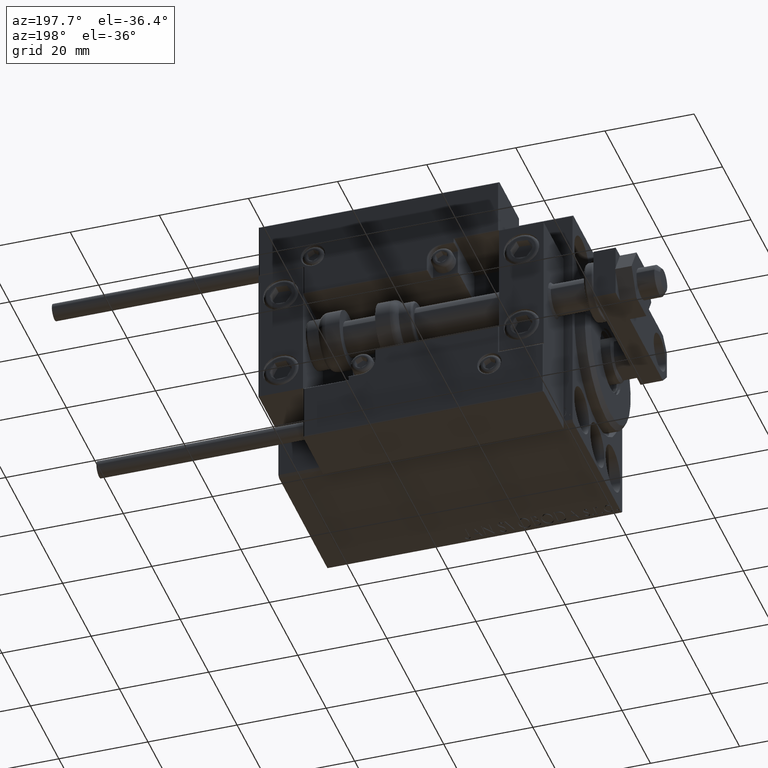
[diagram: clean part render]
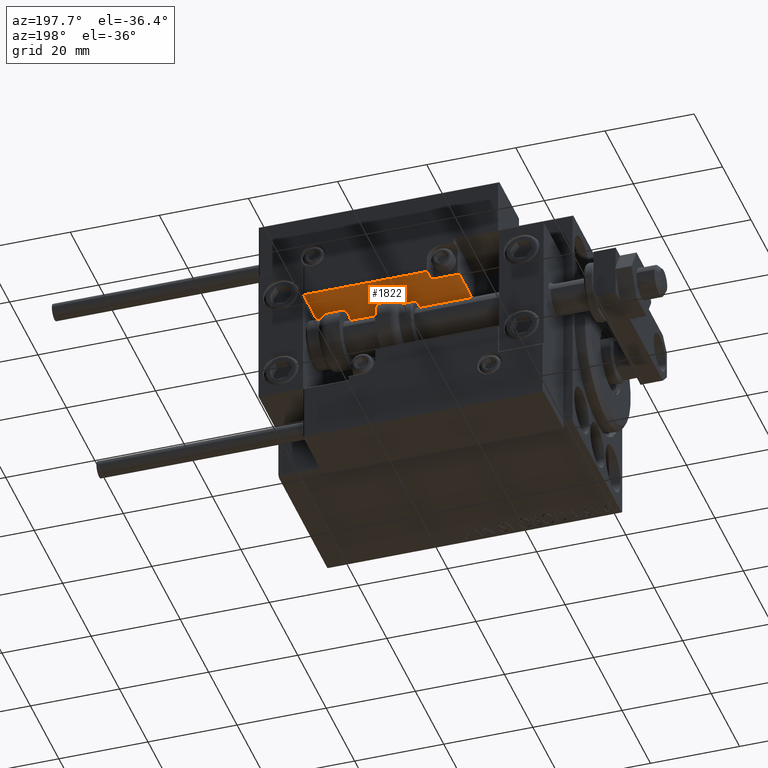
[diagram: same view with one face highlighted and labeled with its STEP entity id]
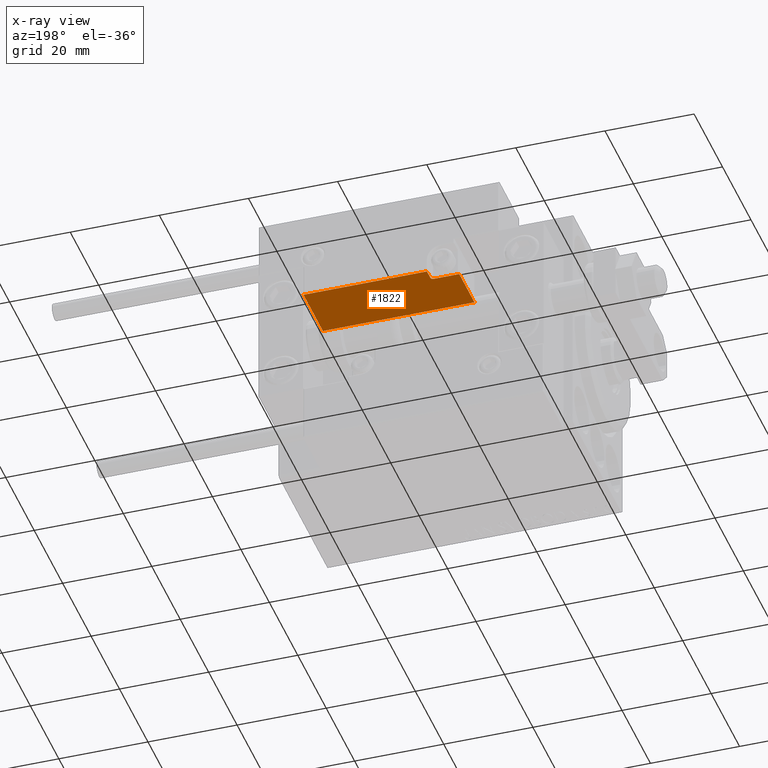
[diagram: x-ray of the same camera — body ghosted, the highlighted face saturated]
A machine part, auxiliary view. The second image highlights one B-rep face of the part: STEP entity #1822.
The next image is the same camera in x-ray: the body ghosted, the highlighted face saturated — about 1% of this face is hidden behind the body in this view.
In plain terms, the highlighted planar face has unit normal (0, 0, 1).
Its self-contained STEP definition (entity closure, byte-faithful):
#243 = DIRECTION ( 'NONE',  ( 0.000000000000000000, 0.000000000000000000, 1.000000000000000000 ) ) ;
#461 = CARTESIAN_POINT ( 'NONE',  ( -16.99999999999999289, 3.252606517456513302E-15, 0.000000000000000000 ) ) ;
#777 = VERTEX_POINT ( 'NONE', #31545 ) ;
#812 = VERTEX_POINT ( 'NONE', #38399 ) ;
#1822 = ADVANCED_FACE ( 'NONE', ( #41169 ), #22625, .F. ) ;
#2445 = VERTEX_POINT ( 'NONE', #6297 ) ;
#2857 = CARTESIAN_POINT ( 'NONE',  ( -16.99999999999999289, 3.252606517456513302E-15, 13.70000000000000107 ) ) ;
#3475 = CARTESIAN_POINT ( 'NONE',  ( -16.99999999999999289, 3.252606517456513302E-15, 13.70000000000000107 ) ) ;
#4312 = LINE ( 'NONE', #27381, #40959 ) ;
#4933 = ORIENTED_EDGE ( 'NONE', *, *, #34212, .F. ) ;
#6297 = CARTESIAN_POINT ( 'NONE',  ( -16.99999999999999289, 3.252606517456513302E-15, 0.000000000000000000 ) ) ;
#8298 = DIRECTION ( 'NONE',  ( -0.000000000000000000, -0.000000000000000000, -1.000000000000000000 ) ) ;
#10479 = DIRECTION ( 'NONE',  ( 0.000000000000000000, 1.000000000000000000, 0.000000000000000000 ) ) ;
#10879 = DIRECTION ( 'NONE',  ( -1.000000000000000000, 0.000000000000000000, -0.000000000000000000 ) ) ;
#11898 = LINE ( 'NONE', #15709, #26182 ) ;
#12059 = AXIS2_PLACEMENT_3D ( 'NONE', #19517, #34993, #243 ) ;
#12787 = EDGE_CURVE ( 'NONE', #812, #21326, #27558, .T. ) ;
#14947 = ORIENTED_EDGE ( 'NONE', *, *, #42232, .T. ) ;
#15021 = CARTESIAN_POINT ( 'NONE',  ( -16.99999999999999289, 3.252606517456513302E-15, 14.00000000000000000 ) ) ;
#15284 = CARTESIAN_POINT ( 'NONE',  ( 10.70000000000000107, 3.252606517456513302E-15, 11.29999999999999893 ) ) ;
#15709 = CARTESIAN_POINT ( 'NONE',  ( -16.99999999999999289, 3.252606517456513302E-15, 14.00000000000000000 ) ) ;
#16175 = LINE ( 'NONE', #27051, #48861 ) ;
#16268 = ORIENTED_EDGE ( 'NONE', *, *, #22460, .F. ) ;
#17390 = VECTOR ( 'NONE', #10879, 1000.000000000000000 ) ;
#18851 = VERTEX_POINT ( 'NONE', #15284 ) ;
#18979 = CARTESIAN_POINT ( 'NONE',  ( 11.00000000000000000, 3.252606517456513302E-15, 10.69999999999999929 ) ) ;
#19517 = CARTESIAN_POINT ( 'NONE',  ( 11.29999999999999893, 3.252606517456513302E-15, 11.29999999999999893 ) ) ;
#19779 = DIRECTION ( 'NONE',  ( 0.000000000000000000, -0.000000000000000000, 1.000000000000000000 ) ) ;
#21326 = VERTEX_POINT ( 'NONE', #2857 ) ;
#22125 = DIRECTION ( 'NONE',  ( 0.000000000000000000, -0.000000000000000000, 1.000000000000000000 ) ) ;
#22460 = EDGE_CURVE ( 'NONE', #18851, #777, #23405, .T. ) ;
#22625 = PLANE ( 'NONE',  #38452 ) ;
#23405 = CIRCLE ( 'NONE', #12059, 0.5999999999999998668 ) ;
#26182 = VECTOR ( 'NONE', #42601, 1000.000000000000000 ) ;
#27051 = CARTESIAN_POINT ( 'NONE',  ( 16.99999999999999289, 3.252606517456513302E-15, 14.00000000000000000 ) ) ;
#27155 = VERTEX_POINT ( 'NONE', #30090 ) ;
#27381 = CARTESIAN_POINT ( 'NONE',  ( 10.70000000000000107, 3.252606517456513302E-15, 14.00000000000000000 ) ) ;
#27558 = LINE ( 'NONE', #3475, #37229 ) ;
#27709 = ORIENTED_EDGE ( 'NONE', *, *, #12787, .T. ) ;
#28075 = EDGE_LOOP ( 'NONE', ( #4933, #31526, #16268, #14947, #27709, #48460, #48988 ) ) ;
#30090 = CARTESIAN_POINT ( 'NONE',  ( 16.99999999999999289, 3.252606517456513302E-15, 0.000000000000000000 ) ) ;
#31526 = ORIENTED_EDGE ( 'NONE', *, *, #47442, .T. ) ;
#31545 = CARTESIAN_POINT ( 'NONE',  ( 11.29999999999999893, 3.252606517456513302E-15, 10.69999999999999929 ) ) ;
#31880 = EDGE_CURVE ( 'NONE', #2445, #27155, #35207, .T. ) ;
#34212 = EDGE_CURVE ( 'NONE', #43216, #27155, #16175, .T. ) ;
#34958 = DIRECTION ( 'NONE',  ( 1.000000000000000000, 0.000000000000000000, 0.000000000000000000 ) ) ;
#34993 = DIRECTION ( 'NONE',  ( -0.000000000000000000, -1.000000000000000000, -0.000000000000000000 ) ) ;
#35207 = LINE ( 'NONE', #461, #35817 ) ;
#35438 = DIRECTION ( 'NONE',  ( -1.000000000000000000, 0.000000000000000000, -0.000000000000000000 ) ) ;
#35817 = VECTOR ( 'NONE', #34958, 1000.000000000000000 ) ;
#37229 = VECTOR ( 'NONE', #35438, 1000.000000000000000 ) ;
#37527 = LINE ( 'NONE', #18979, #17390 ) ;
#38399 = CARTESIAN_POINT ( 'NONE',  ( 10.70000000000000107, 3.252606517456513302E-15, 13.70000000000000107 ) ) ;
#38452 = AXIS2_PLACEMENT_3D ( 'NONE', #15021, #10479, #22125 ) ;
#40390 = EDGE_CURVE ( 'NONE', #21326, #2445, #11898, .T. ) ;
#40692 = CARTESIAN_POINT ( 'NONE',  ( 16.99999999999999289, 3.252606517456513302E-15, 10.69999999999999929 ) ) ;
#40959 = VECTOR ( 'NONE', #19779, 1000.000000000000000 ) ;
#41169 = FACE_OUTER_BOUND ( 'NONE', #28075, .T. ) ;
#42232 = EDGE_CURVE ( 'NONE', #18851, #812, #4312, .T. ) ;
#42601 = DIRECTION ( 'NONE',  ( -0.000000000000000000, -0.000000000000000000, -1.000000000000000000 ) ) ;
#43216 = VERTEX_POINT ( 'NONE', #40692 ) ;
#47442 = EDGE_CURVE ( 'NONE', #43216, #777, #37527, .T. ) ;
#48460 = ORIENTED_EDGE ( 'NONE', *, *, #40390, .T. ) ;
#48861 = VECTOR ( 'NONE', #8298, 1000.000000000000000 ) ;
#48988 = ORIENTED_EDGE ( 'NONE', *, *, #31880, .T. ) ;